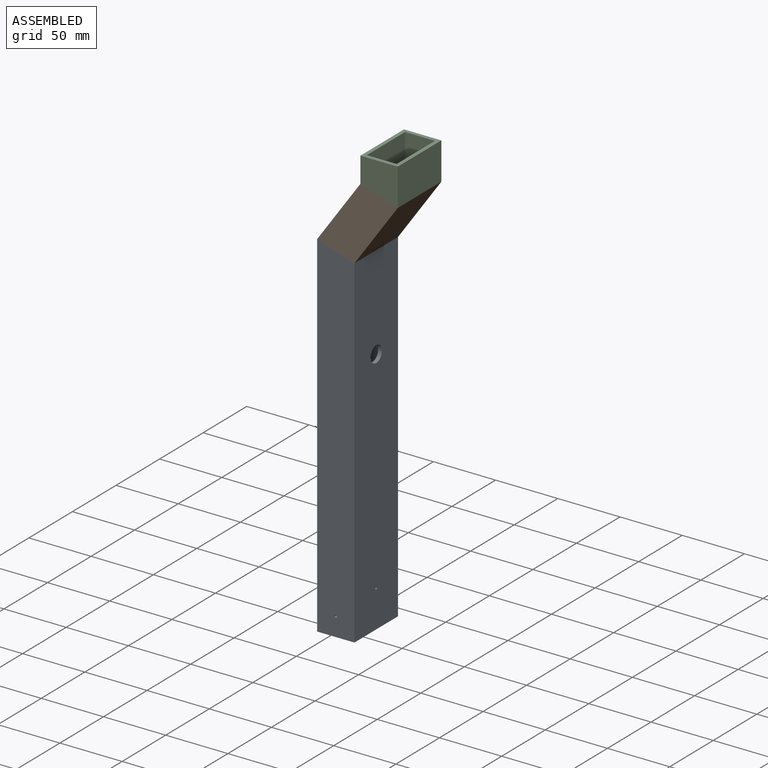
[diagram: assembled view]
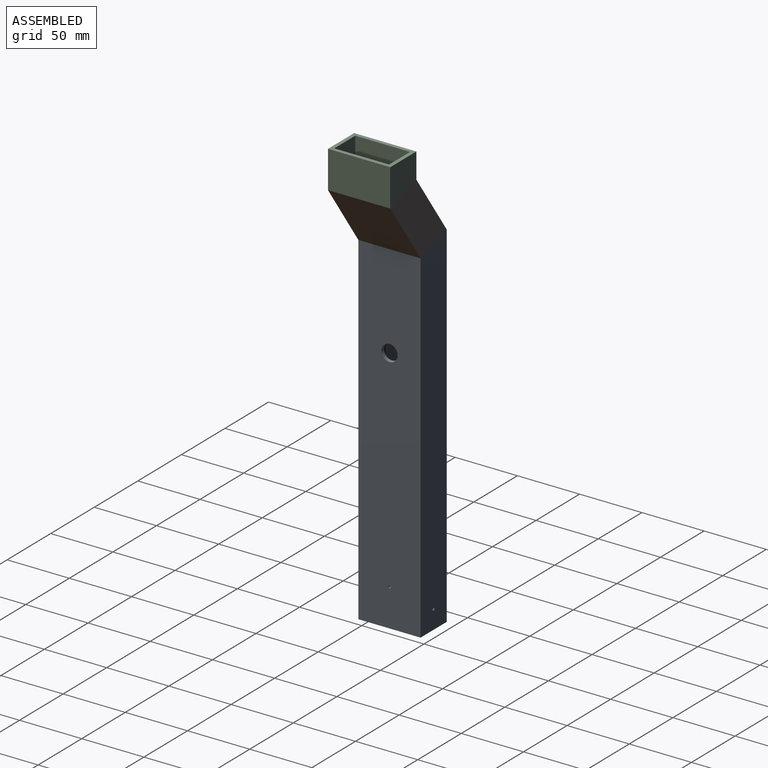
[diagram: assembled view, second angle]
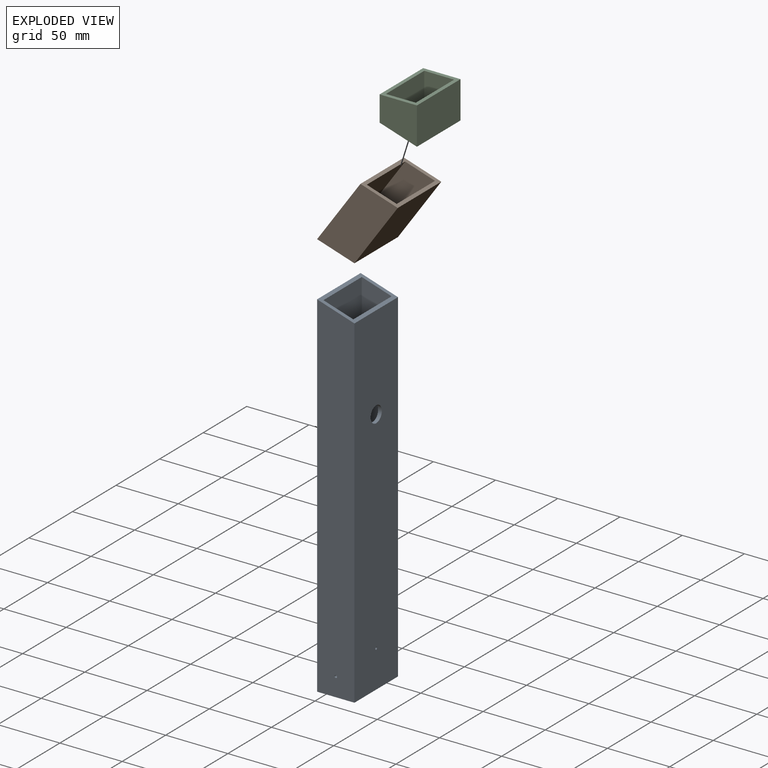
[diagram: exploded view]
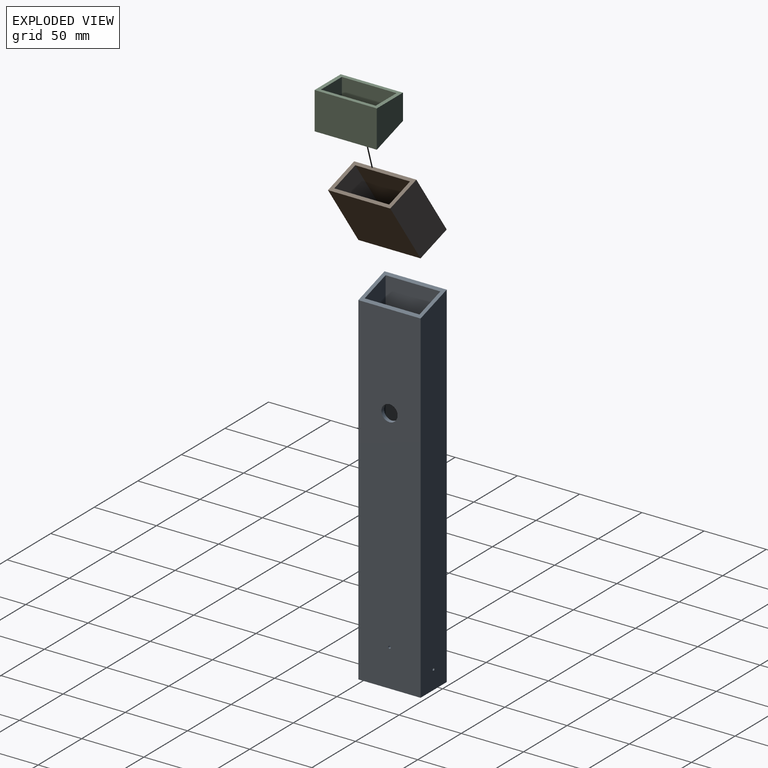
[diagram: exploded view, second angle]
ASSEMBLY  parts=3 mates=5
PART A: 16 faces, bbox 30x285x50 mm
  f0: plane 285x30mm, normal (0,0,1), area 8404.4mm2, adj f1,f7,f8,f9,f15
  f1: plane 275.5x50mm, normal (-1,0,0), area 13639.2mm2, adj f0,f2,f8,f9,f12,f13
  f2: plane 285x30mm, normal (0,0,-1), area 8404.4mm2, adj f1,f7,f8,f9,f14
  f3: plane 276.45x44mm, normal (1,0,0), area 12028mm2, adj f4,f6,f8,f9,f12,f13
  f4: plane 284.05x24mm, normal (0,0,-1), area 6722.9mm2, adj f3,f5,f8,f9,f15
  f5: plane 284.05x44mm, normal (-1,0,0), area 12362.3mm2, adj f4,f6,f8,f9,f10,f11
  f6: plane 284.05x24mm, normal (0,0,1), area 6722.9mm2, adj f3,f5,f8,f9,f14
  f7: plane 285x50mm, normal (1,0,0), area 14114.1mm2, adj f0,f2,f8,f9,f10,f11
  f8: plane 50x30mm, normal (0,-1,0), area 444mm2, adj f0,f1,f2,f3,f4,f5,f6,f7
  f9: plane 50x30mm, normal (-0.3,0.95,0), area 465.7mm2, adj f0,f1,f2,f3,f4,f5,f6,f7
  f10: cylinder r=6.5mm len=13mm, axis (1,0,0), area 122.5mm2, adj f5,f7
  f11: cylinder r=1mm len=3mm, axis (1,0,0), area 18.8mm2, adj f5,f7
  f12: cylinder r=6.5mm len=13mm, axis (1,0,0), area 122.5mm2, adj f1,f3
  f13: cylinder r=1mm len=3mm, axis (1,0,0), area 18.8mm2, adj f1,f3
  f14: cylinder r=1mm len=3mm, axis (0,0,1), area 18.8mm2, adj f2,f6
  f15: cylinder r=1mm len=3mm, axis (0,0,1), area 18.8mm2, adj f0,f4
PART B: 10 faces, bbox 30x70x50 mm
  f0: plane 68.1x24mm, normal (0,0,1), area 1452mm2, adj f1,f3,f4,f5
  f1: plane 60.5x44mm, normal (-1,0,0), area 2662mm2, adj f0,f2,f4,f5
  f2: plane 68.1x24mm, normal (0,0,-1), area 1452mm2, adj f1,f3,f4,f5
  f3: plane 60.5x44mm, normal (1,0,0), area 2662mm2, adj f0,f2,f4,f5
  f4: plane 50x30mm, normal (0.3,-0.95,0), area 465.7mm2, adj f0,f1,f2,f3,f6,f7,f8,f9
  f5: plane 50x30mm, normal (-0.3,0.95,0), area 465.7mm2, adj f0,f1,f2,f3,f6,f7,f8,f9
  f6: plane 70x30mm, normal (0,0,1), area 1815mm2, adj f4,f5,f7,f9
  f7: plane 60.5x50mm, normal (-1,0,0), area 3025mm2, adj f4,f5,f6,f8
  f8: plane 70x30mm, normal (0,0,-1), area 1815mm2, adj f4,f5,f7,f9
  f9: plane 60.5x50mm, normal (1,0,0), area 3025mm2, adj f4,f5,f6,f8
PART C: 10 faces, bbox 30x30x50 mm
  f0: plane 30x30mm, normal (0,0,1), area 757.5mm2, adj f1,f7,f8,f9
  f1: plane 50x20.5mm, normal (-1,0,0), area 1025mm2, adj f0,f2,f8,f9
  f2: plane 30x30mm, normal (0,0,-1), area 757.5mm2, adj f1,f7,f8,f9
  f3: plane 44x21.45mm, normal (1,0,0), area 943.8mm2, adj f4,f6,f8,f9
  f4: plane 29.05x24mm, normal (0,0,-1), area 606mm2, adj f3,f5,f8,f9
  f5: plane 44x29.05mm, normal (-1,0,0), area 1278.2mm2, adj f4,f6,f8,f9
  f6: plane 29.05x24mm, normal (0,0,1), area 606mm2, adj f3,f5,f8,f9
  f7: plane 50x30mm, normal (1,0,0), area 1500mm2, adj f0,f2,f8,f9
  f8: plane 50x30mm, normal (0,-1,0), area 444mm2, adj f0,f1,f2,f3,f4,f5,f6,f7
  f9: plane 50x30mm, normal (-0.3,0.95,0), area 465.7mm2, adj f0,f1,f2,f3,f4,f5,f6,f7
PLACE A rot(axis=(0,-0.71,-0.71),180deg) t=(-35.42,-22,-57.25)mm
PLACE B rot(axis=(0.91,0.29,-0.29),95.2deg) t=(2.13,-22,-8.65)mm
PLACE C rot(axis=(-1,0,0),90deg) t=(-0.6,-22,-17.28)mm
MATE planar B.f4 <-> A.f9  axis (-0.3,0,-0.95) through (-35.42,3,-62)mm
MATE planar A.f9 <-> B.f4  axis (0.3,0,0.95) through (-50.42,-22,-57.25)mm
MATE planar C.f9 <-> B.f5  axis (-0.3,0,-0.95) through (-12.6,-22,-8.73)mm
MATE fastened B.f4 <-> A.f9  axis (-0.3,0,-0.95) through (-50.42,-22,-57.25)mm
MATE fastened C.f9 <-> B.f5  axis (-0.3,0,-0.95) through (-15.6,-22,-7.78)mm
